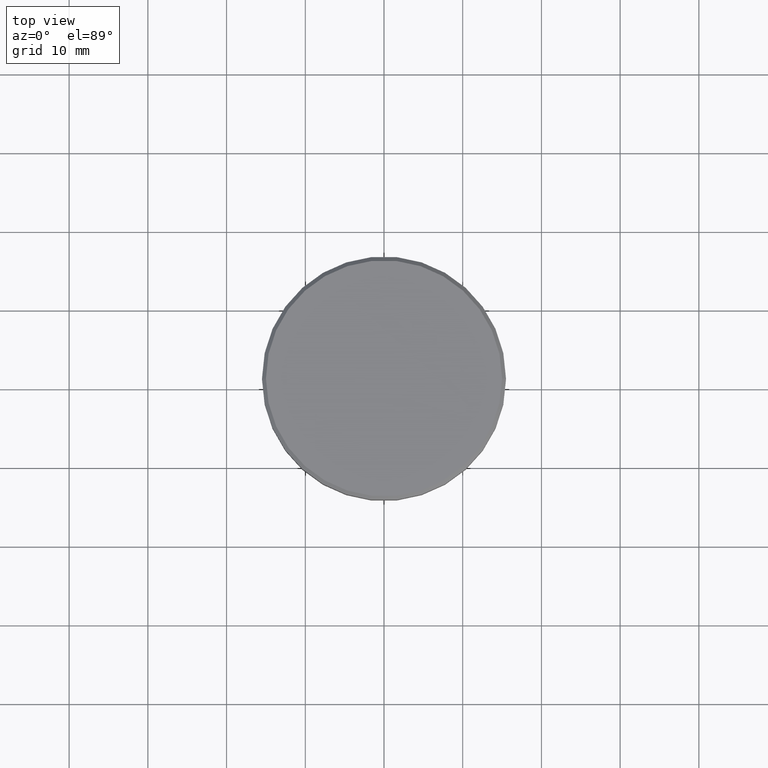
[diagram: clean part render]
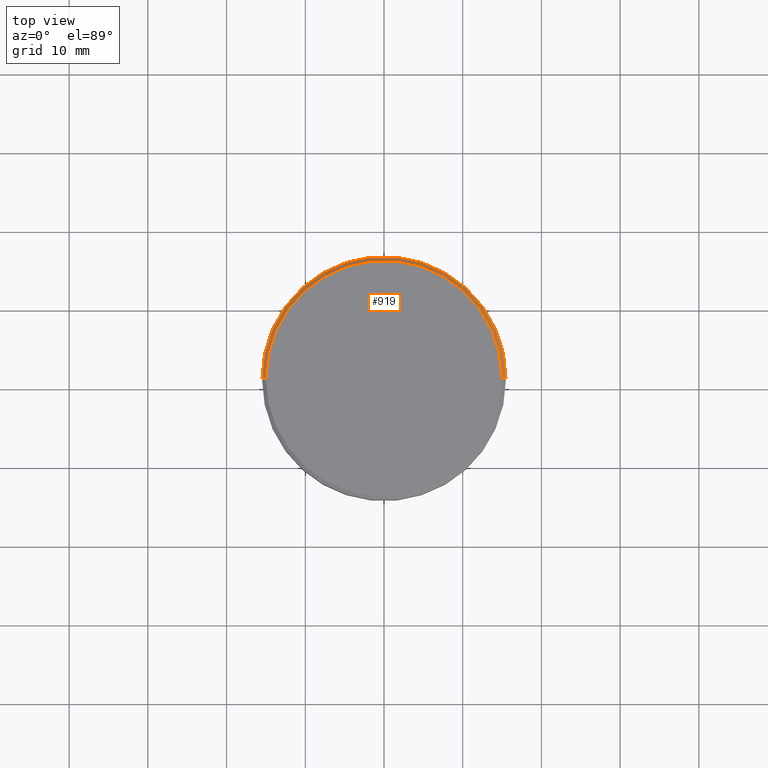
[diagram: same view with one face highlighted and labeled with its STEP entity id]
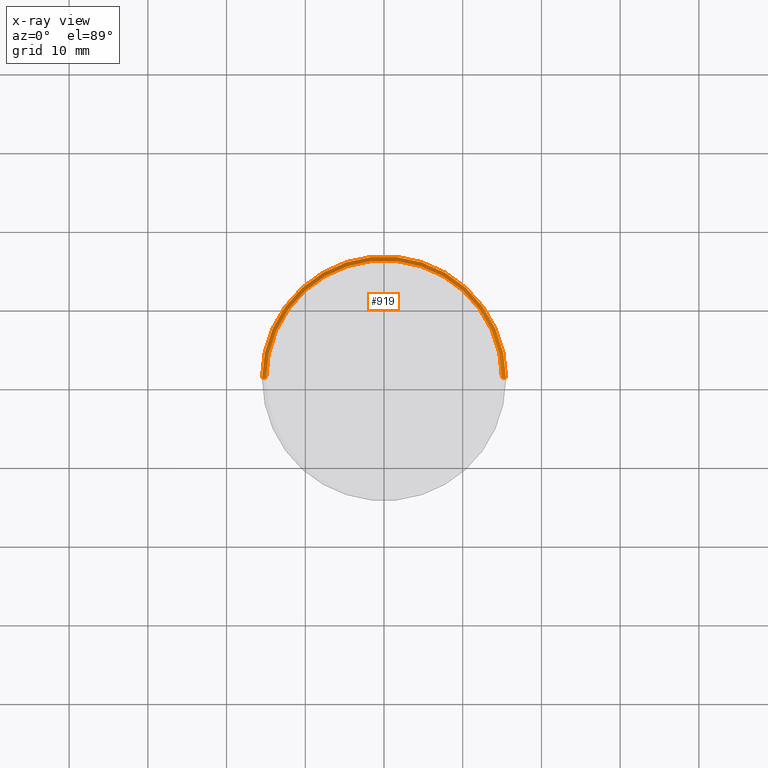
[diagram: x-ray of the same camera — body ghosted, the highlighted face saturated]
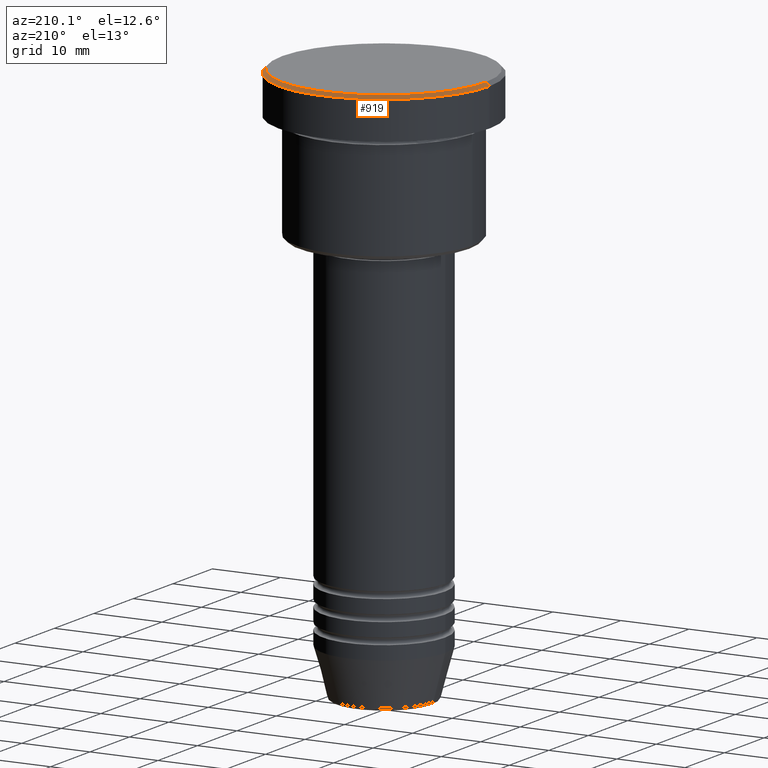
[diagram: same view with one face highlighted and labeled with its STEP entity id]
A machine part, top view. The second image highlights one B-rep face of the part: STEP entity #919.
The next image is the same camera in x-ray: the body ghosted, the highlighted face saturated — about 0% of this face is hidden behind the body in this view.
A second angle (auxiliary view) of the same face is appended — the face is thin or edge-on in the first view.
In plain terms, the highlighted conical surface has half-angle 45 deg.
Its self-contained STEP definition (entity closure, byte-faithful):
#17 = DIRECTION ( 'NONE',  ( -0.7071067811865487940, 0.000000000000000000, -0.7071067811865463515 ) ) ;
#45 = CARTESIAN_POINT ( 'NONE',  ( 15.00000000000000000, 1.836970198721029589E-15, 0.000000000000000000 ) ) ;
#48 = AXIS2_PLACEMENT_3D ( 'NONE', #407, #661, #801 ) ;
#113 = ORIENTED_EDGE ( 'NONE', *, *, #497, .T. ) ;
#152 = VECTOR ( 'NONE', #545, 1000.000000000000000 ) ;
#164 = ORIENTED_EDGE ( 'NONE', *, *, #389, .F. ) ;
#389 = EDGE_CURVE ( 'NONE', #996, #762, #475, .T. ) ;
#407 = CARTESIAN_POINT ( 'NONE',  ( 0.000000000000000000, 0.000000000000000000, 0.000000000000000000 ) ) ;
#471 = DIRECTION ( 'NONE',  ( 0.000000000000000000, 0.000000000000000000, -1.000000000000000000 ) ) ;
#475 = CIRCLE ( 'NONE', #534, 15.50000000000000000 ) ;
#487 = CARTESIAN_POINT ( 'NONE',  ( 15.00000000000000000, 1.867586368699713376E-15, 0.000000000000000000 ) ) ;
#497 = EDGE_CURVE ( 'NONE', #984, #762, #1048, .T. ) ;
#503 = ORIENTED_EDGE ( 'NONE', *, *, #579, .F. ) ;
#534 = AXIS2_PLACEMENT_3D ( 'NONE', #616, #716, #907 ) ;
#545 = DIRECTION ( 'NONE',  ( 0.7071067811865487940, 8.659560562354950115E-17, -0.7071067811865463515 ) ) ;
#567 = CARTESIAN_POINT ( 'NONE',  ( 0.000000000000000000, 0.000000000000000000, 0.000000000000000000 ) ) ;
#579 = EDGE_CURVE ( 'NONE', #984, #962, #920, .T. ) ;
#616 = CARTESIAN_POINT ( 'NONE',  ( 0.000000000000000000, 0.000000000000000000, -0.4999999999999987232 ) ) ;
#619 = EDGE_CURVE ( 'NONE', #962, #996, #632, .T. ) ;
#632 = LINE ( 'NONE', #942, #745 ) ;
#661 = DIRECTION ( 'NONE',  ( -0.000000000000000000, -0.000000000000000000, 1.000000000000000000 ) ) ;
#666 = CARTESIAN_POINT ( 'NONE',  ( -15.50000000000000000, 1.898202538678397557E-15, -0.4999999999999987232 ) ) ;
#716 = DIRECTION ( 'NONE',  ( 0.000000000000000000, 0.000000000000000000, -1.000000000000000000 ) ) ;
#745 = VECTOR ( 'NONE', #17, 1000.000000000000000 ) ;
#755 = CARTESIAN_POINT ( 'NONE',  ( -15.00000000000000000, 0.000000000000000000, 0.000000000000000000 ) ) ;
#762 = VERTEX_POINT ( 'NONE', #820 ) ;
#785 = AXIS2_PLACEMENT_3D ( 'NONE', #567, #471, #1024 ) ;
#801 = DIRECTION ( 'NONE',  ( 1.000000000000000000, 0.000000000000000000, 0.000000000000000000 ) ) ;
#820 = CARTESIAN_POINT ( 'NONE',  ( 15.50000000000000000, 0.000000000000000000, -0.4999999999999987232 ) ) ;
#907 = DIRECTION ( 'NONE',  ( 1.000000000000000000, 0.000000000000000000, 0.000000000000000000 ) ) ;
#919 = ADVANCED_FACE ( 'NONE', ( #1102 ), #1135, .T. ) ;
#920 = CIRCLE ( 'NONE', #48, 15.00000000000000000 ) ;
#942 = CARTESIAN_POINT ( 'NONE',  ( -15.00000000000000000, 0.000000000000000000, 0.000000000000000000 ) ) ;
#948 = EDGE_LOOP ( 'NONE', ( #503, #113, #164, #1143 ) ) ;
#962 = VERTEX_POINT ( 'NONE', #755 ) ;
#984 = VERTEX_POINT ( 'NONE', #487 ) ;
#996 = VERTEX_POINT ( 'NONE', #666 ) ;
#1024 = DIRECTION ( 'NONE',  ( -1.000000000000000000, 0.000000000000000000, 0.000000000000000000 ) ) ;
#1048 = LINE ( 'NONE', #45, #152 ) ;
#1102 = FACE_OUTER_BOUND ( 'NONE', #948, .T. ) ;
#1135 = CONICAL_SURFACE ( 'NONE', #785, 15.00000000000000000, 0.7853981633974500554 ) ;
#1143 = ORIENTED_EDGE ( 'NONE', *, *, #619, .F. ) ;